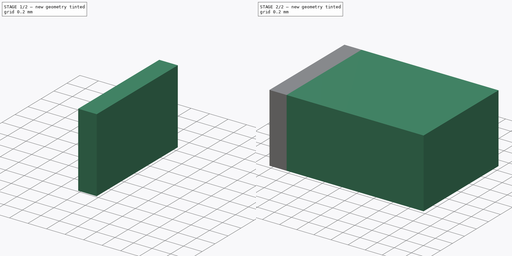
[diagram: build sequence overview — one tinted view per stage of 2, left to right]
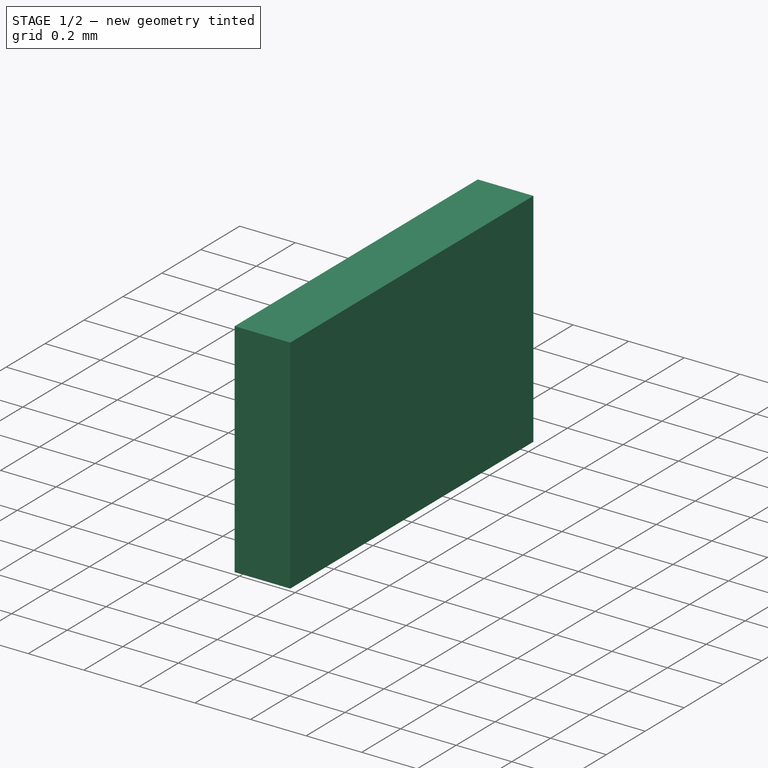
[diagram: stage 1 of 2 — iso view after this stage's code; geometry added in this stage tinted green]
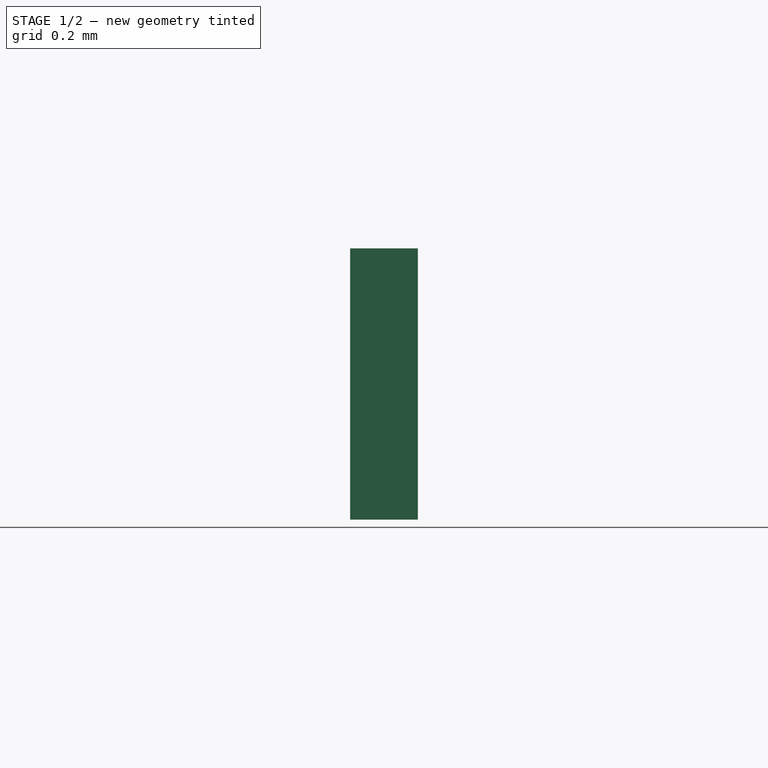
[diagram: stage 1 of 2 — front view after this stage's code; geometry added in this stage tinted green]
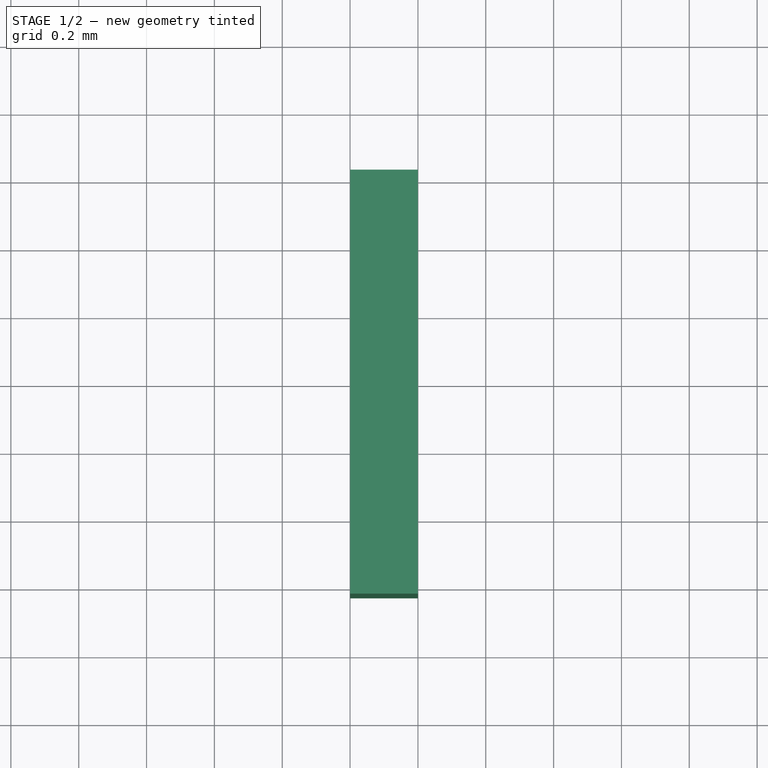
[diagram: stage 1 of 2 — top view after this stage's code; geometry added in this stage tinted green]
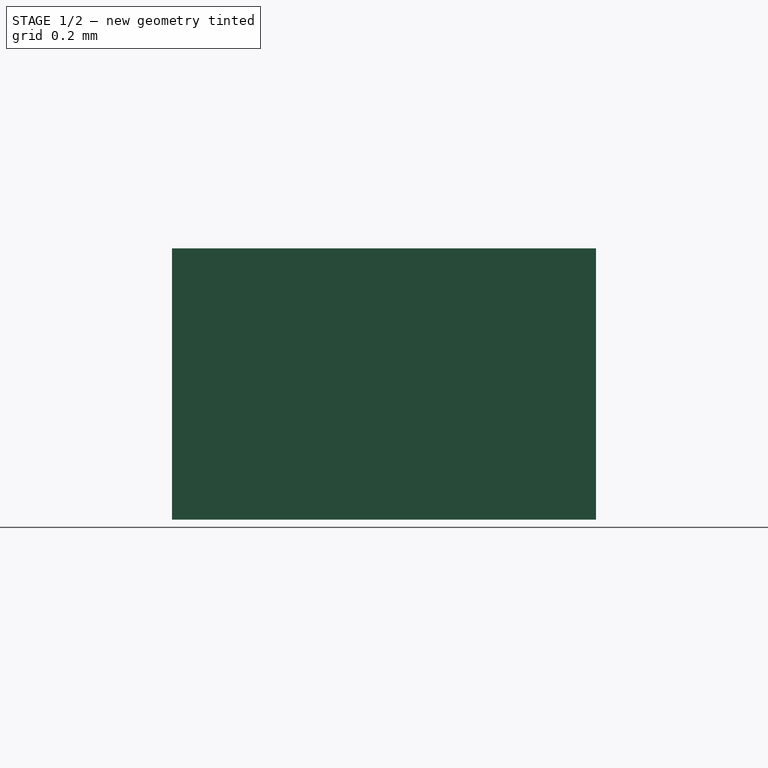
[diagram: stage 1 of 2 — right view after this stage's code; geometry added in this stage tinted green]
FCSTD DOCUMENT  (FreeCAD 0.19R24291 (Git))
Label: 0805 Capacitor
License: All rights reserved
LicenseURL: http://en.wikipedia.org/wiki/All_rights_reserved
objects: Sketcher::SketchObject×2, PartDesign::Pad×2, PartDesign::Body×2, Part::Mirroring×1
note: 9 computed .brp shape members not serialized (recipe doc carries the construction recipe); baked Part::Feature solids carry a one-line shape summary decoded from their .brp

FEATURE [PartDesign::Body] Body
  Group = -> [Sketch,Pad]
  Origin = -> Origin
  Tip = -> Pad
FEATURE [Sketcher::SketchObject] Sketch001
  FullyConstrained = true
  MapMode = 5
  Support = -> [XY_Plane001]
  sketch-geometry (4):
    g0: LineSegment StartX=0.8 StartY=0.625 StartZ=0 EndX=1 EndY=0.625 EndZ=0
    g1: LineSegment StartX=1 StartY=0.625 StartZ=0 EndX=1 EndY=-0.625 EndZ=0
    g2: LineSegment StartX=1 StartY=-0.625 StartZ=0 EndX=0.8 EndY=-0.625 EndZ=0
    g3: LineSegment StartX=0.8 StartY=-0.625 StartZ=0 EndX=0.8 EndY=0.625 EndZ=0
  constraints (11):
    c: Coincident(g0,g1)
    c: Coincident(g1,g2)
    c: Coincident(g2,g3)
    c: Coincident(g3,g0)
    c: Horizontal(g0)
    c: Horizontal(g2)
    c: Vertical(g3)
    c: Symmetric(g0,g1,g-1)
    c: DistanceY(g1,g1) = 1.25
    c: DistanceX(g-1,g0) = 1
    c: DistanceX(g-1,g0) = 0.8
FEATURE [PartDesign::Pad] Pad001
  Direction = (1,1,1)
  Length = 0.8
  Length2 = 100
  Profile = -> Sketch001
  Type = 0
FEATURE [PartDesign::Body] Body001
  Group = -> [Sketch001,Pad001]
  Origin = -> Origin001
  Tip = -> Pad001
FEATURE [Part::Mirroring] Part__Mirroring  label="Body001 (Mirror #1)"
  Base = (0,0,0)
  Normal = (1,0,0)
  Source = -> Body001
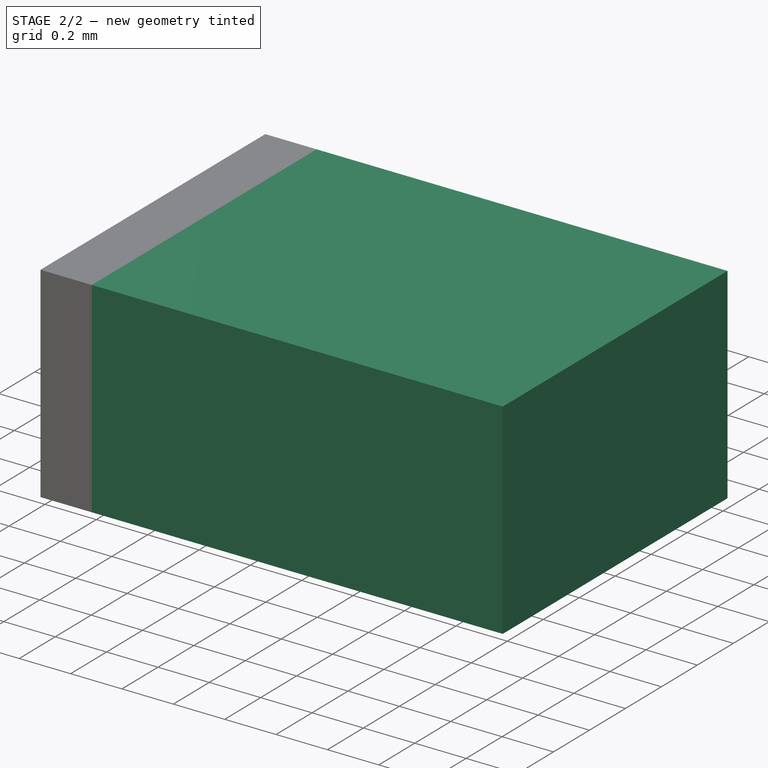
[diagram: stage 2 of 2 — iso view after this stage's code; geometry added in this stage tinted green]
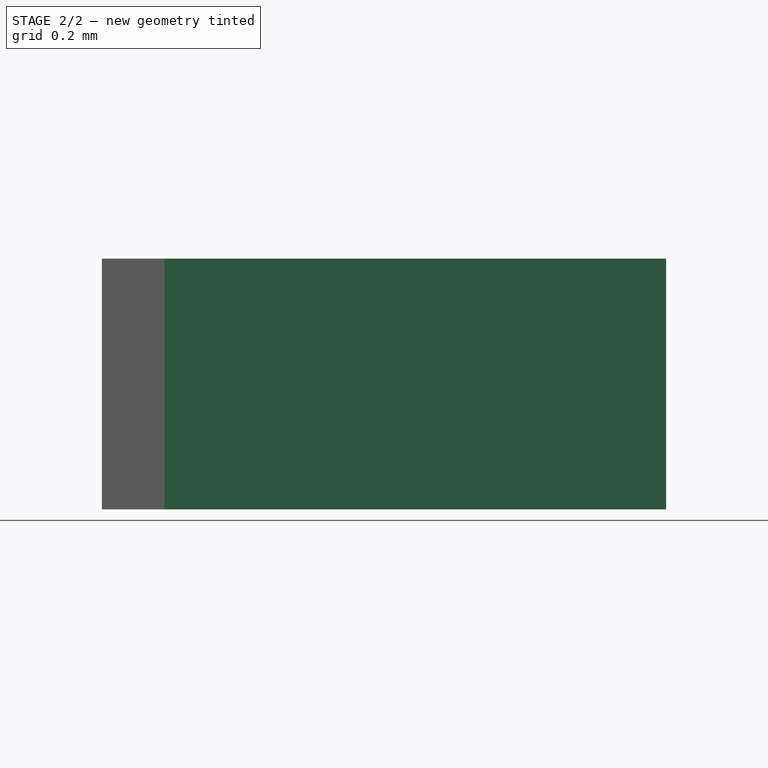
[diagram: stage 2 of 2 — front view after this stage's code; geometry added in this stage tinted green]
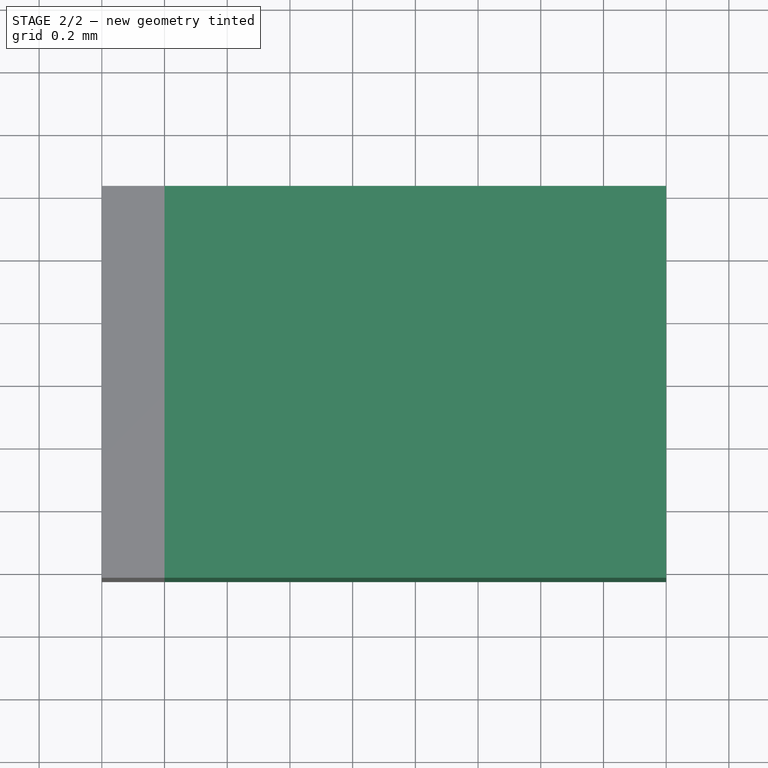
[diagram: stage 2 of 2 — top view after this stage's code; geometry added in this stage tinted green]
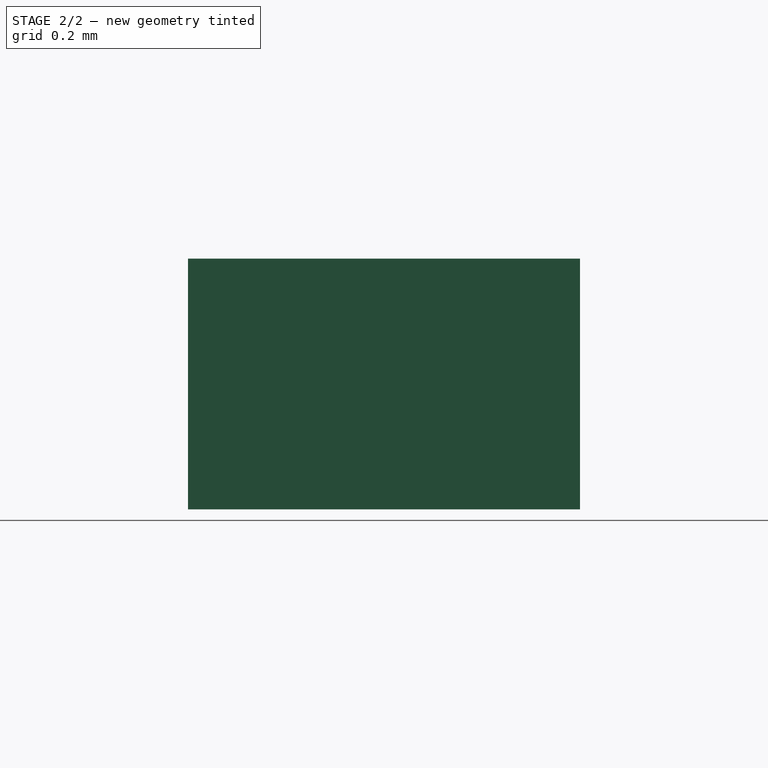
[diagram: stage 2 of 2 — right view after this stage's code; geometry added in this stage tinted green]
FEATURE [Sketcher::SketchObject] Sketch
  FullyConstrained = true
  MapMode = 5
  Support = -> [XY_Plane]
  sketch-geometry (4):
    g0: LineSegment StartX=-0.8 StartY=0.625 StartZ=0 EndX=0.8 EndY=0.625 EndZ=0
    g1: LineSegment StartX=0.8 StartY=0.625 StartZ=0 EndX=0.8 EndY=-0.625 EndZ=0
    g2: LineSegment StartX=0.8 StartY=-0.625 StartZ=0 EndX=-0.8 EndY=-0.625 EndZ=0
    g3: LineSegment StartX=-0.8 StartY=-0.625 StartZ=0 EndX=-0.8 EndY=0.625 EndZ=0
  constraints (11):
    c: Coincident(g0,g1)
    c: Coincident(g1,g2)
    c: Coincident(g2,g3)
    c: Coincident(g3,g0)
    c: Horizontal(g0)
    c: Horizontal(g2)
    c: Vertical(g1)
    c: Vertical(g3)
    c: Symmetric(g1,g0,g-1)
    c: DistanceY(g3,g3) = 1.25
    c: DistanceX(g0,g0) = 1.6
FEATURE [PartDesign::Pad] Pad
  Direction = (1,1,1)
  Length = 0.8
  Length2 = 100
  Profile = -> Sketch
  Type = 0
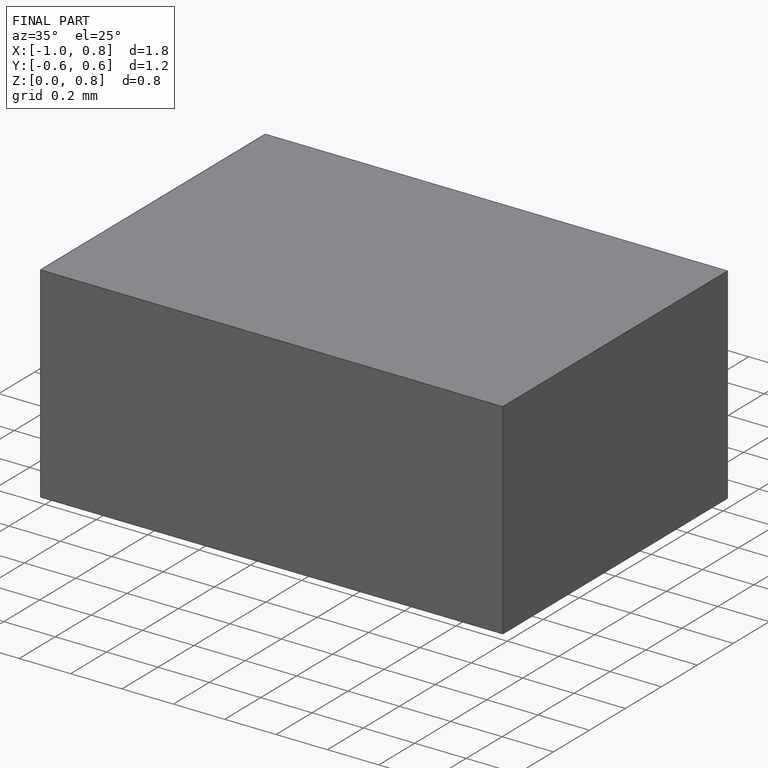
[diagram: finished part — iso view with bounding-box wireframe]
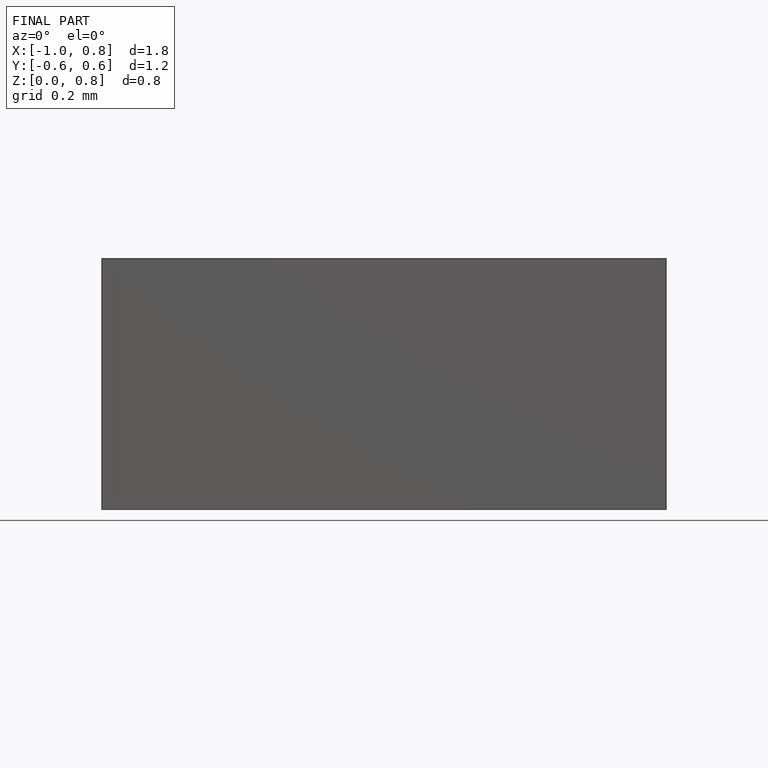
[diagram: finished part — front view with bounding-box wireframe]
